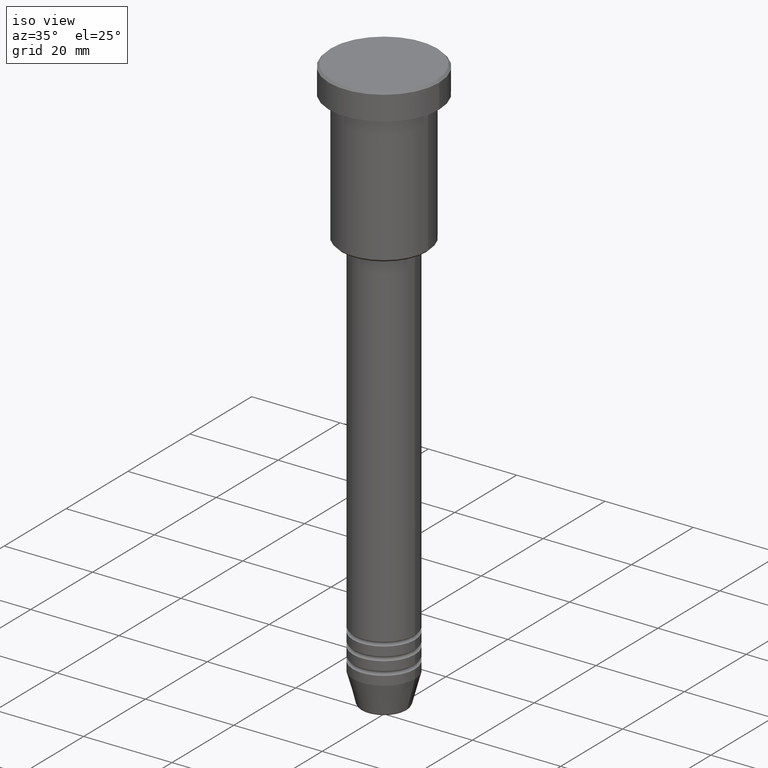
[diagram: clean part render]
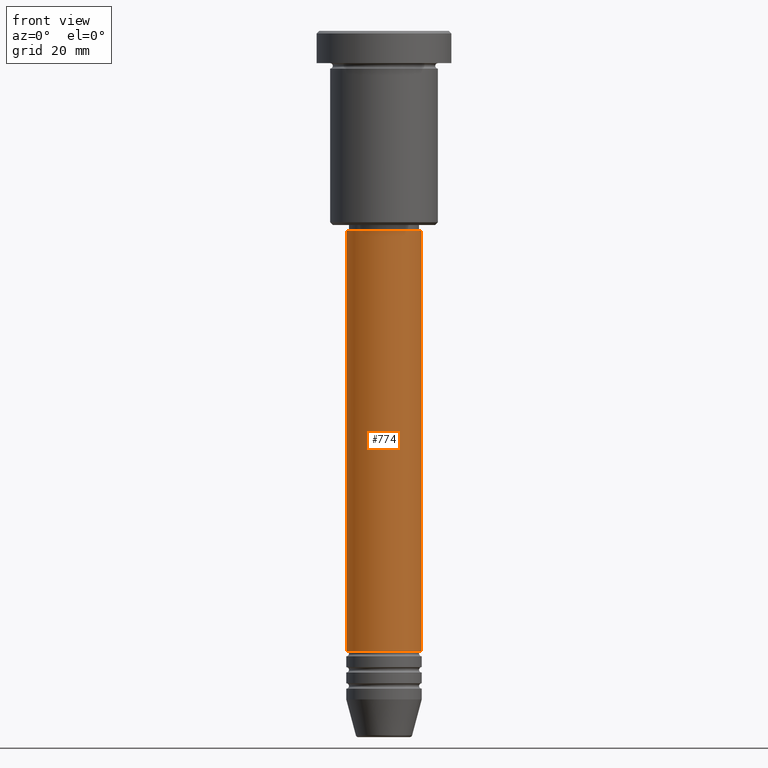
[diagram: tour spotlight — one face highlighted and labeled with its STEP entity id]
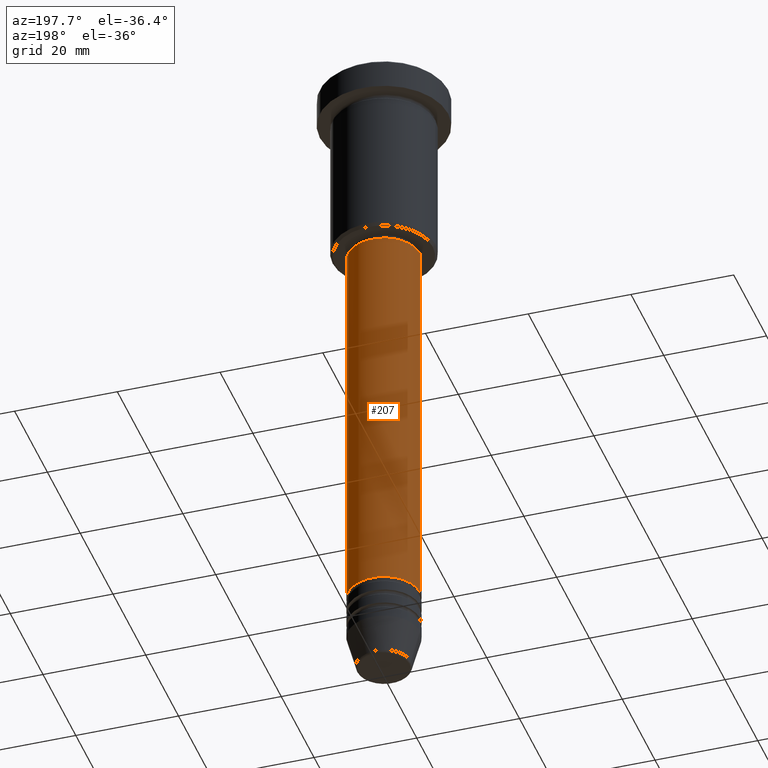
[diagram: tour spotlight — one face highlighted and labeled with its STEP entity id]
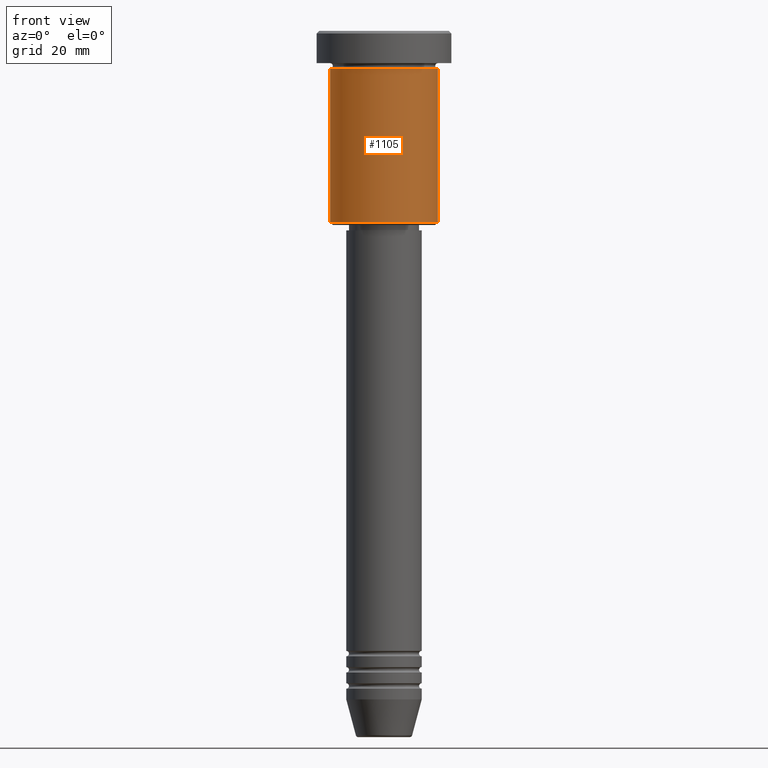
[diagram: tour spotlight — one face highlighted and labeled with its STEP entity id]
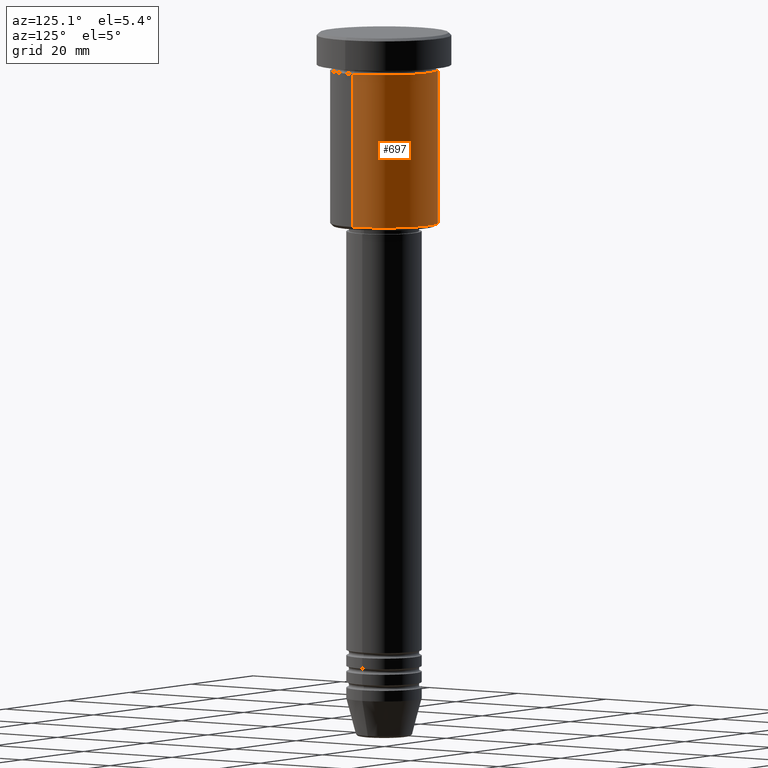
[diagram: tour spotlight — one face highlighted and labeled with its STEP entity id]
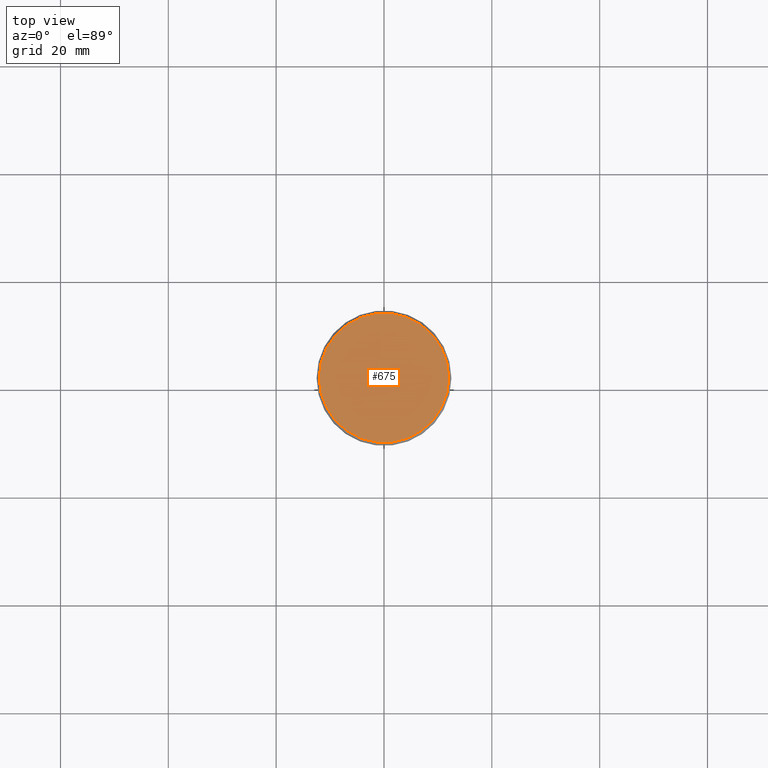
[diagram: tour spotlight — one face highlighted and labeled with its STEP entity id]
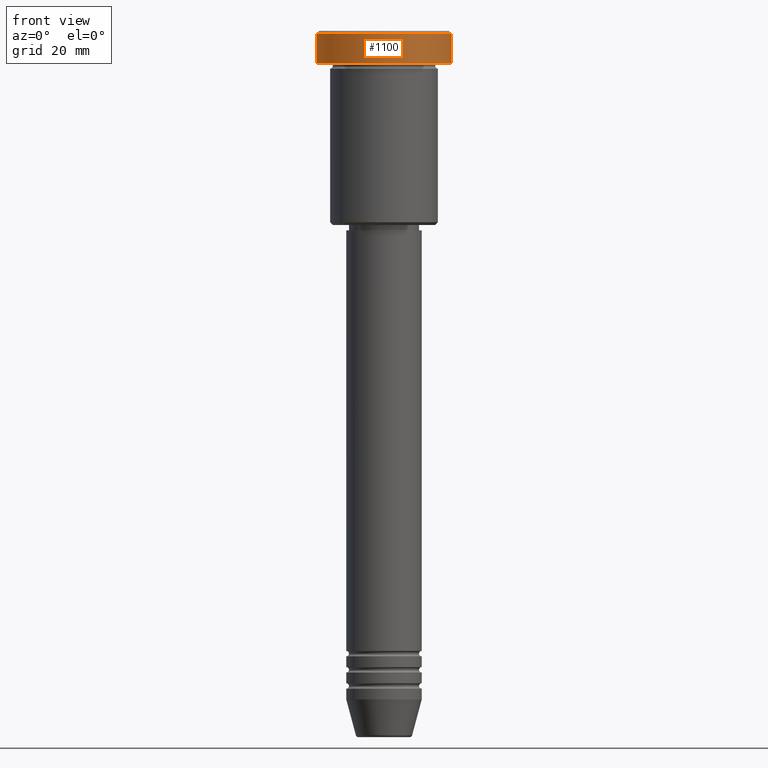
[diagram: tour spotlight — one face highlighted and labeled with its STEP entity id]
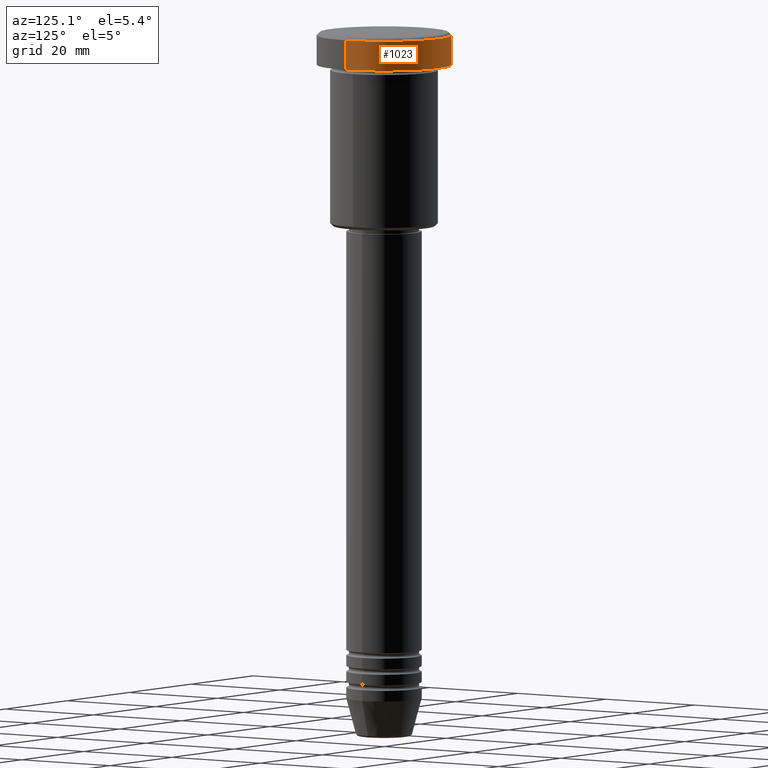
[diagram: tour spotlight — one face highlighted and labeled with its STEP entity id]
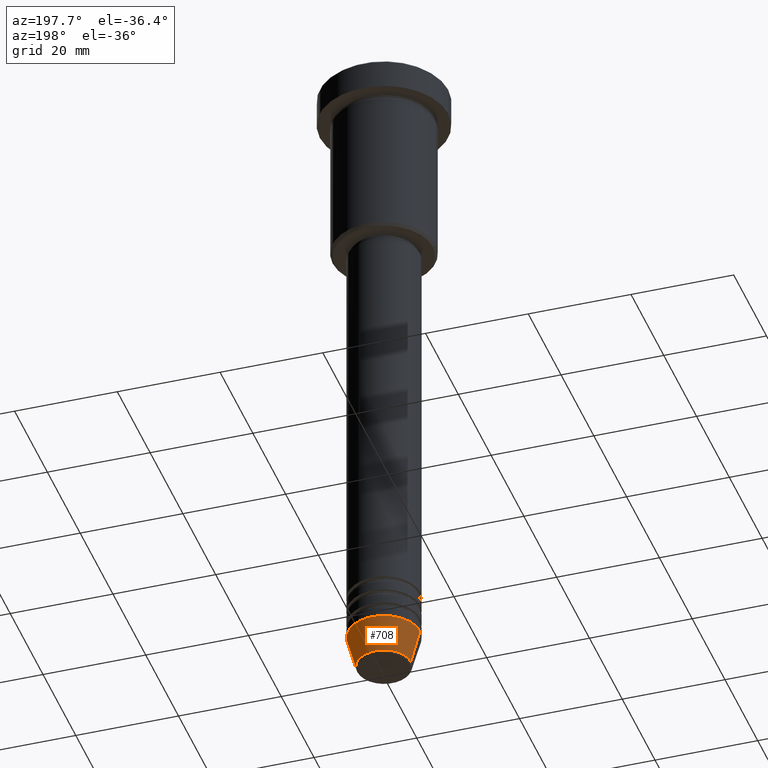
[diagram: tour spotlight — one face highlighted and labeled with its STEP entity id]
A machine part: a face-by-face anatomy tour. The part has 43 B-rep faces; the first image is the clean iso view, then the 8 largest visible faces are spotlighted one at a time (largest first), each with its STEP entity span.

Face 1 — front view, entity #774. In plain terms, the highlighted cylindrical surface (partial cylindrical patch) has radius 7 mm, axis along (-0, -0, 1).
Definition (entity closure, byte-faithful):
#15 = EDGE_CURVE ( 'NONE', #133, #630, #735, .T. ) ;
#23 = DIRECTION ( 'NONE',  ( 1.000000000000000000, 0.000000000000000000, 0.000000000000000000 ) ) ;
#48 = CARTESIAN_POINT ( 'NONE',  ( 0.000000000000000000, 0.000000000000000000, -114.9999999999999574 ) ) ;
#54 = ORIENTED_EDGE ( 'NONE', *, *, #15, .T. ) ;
#83 = ORIENTED_EDGE ( 'NONE', *, *, #433, .F. ) ;
#124 = ORIENTED_EDGE ( 'NONE', *, *, #479, .F. ) ;
#133 = VERTEX_POINT ( 'NONE', #251 ) ;
#251 = CARTESIAN_POINT ( 'NONE',  ( 7.000000000000000000, 0.000000000000000000, -114.9999999999999574 ) ) ;
#270 = CARTESIAN_POINT ( 'NONE',  ( -7.000000000000000000, 8.572527594031473190E-16, -37.00000000000000000 ) ) ;
#298 = FACE_OUTER_BOUND ( 'NONE', #412, .T. ) ;
#310 = CYLINDRICAL_SURFACE ( 'NONE', #766, 7.000000000000000000 ) ;
#321 = CIRCLE ( 'NONE', #535, 7.000000000000000000 ) ;
#343 = CARTESIAN_POINT ( 'NONE',  ( -7.000000000000000000, 8.572527594031473190E-16, 0.000000000000000000 ) ) ;
#360 = EDGE_CURVE ( 'NONE', #1130, #133, #321, .T. ) ;
#412 = EDGE_LOOP ( 'NONE', ( #124, #846, #54, #83 ) ) ;
#433 = EDGE_CURVE ( 'NONE', #1137, #630, #1129, .T. ) ;
#437 = DIRECTION ( 'NONE',  ( -0.000000000000000000, -0.000000000000000000, 1.000000000000000000 ) ) ;
#479 = EDGE_CURVE ( 'NONE', #1130, #1137, #887, .T. ) ;
#493 = DIRECTION ( 'NONE',  ( -0.000000000000000000, -0.000000000000000000, 1.000000000000000000 ) ) ;
#495 = DIRECTION ( 'NONE',  ( -0.000000000000000000, -0.000000000000000000, 1.000000000000000000 ) ) ;
#535 = AXIS2_PLACEMENT_3D ( 'NONE', #48, #495, #23 ) ;
#583 = DIRECTION ( 'NONE',  ( 1.000000000000000000, 0.000000000000000000, 0.000000000000000000 ) ) ;
#614 = CARTESIAN_POINT ( 'NONE',  ( 7.000000000000000000, 0.000000000000000000, 0.000000000000000000 ) ) ;
#625 = DIRECTION ( 'NONE',  ( -0.000000000000000000, -0.000000000000000000, 1.000000000000000000 ) ) ;
#630 = VERTEX_POINT ( 'NONE', #917 ) ;
#715 = VECTOR ( 'NONE', #625, 1000.000000000000000 ) ;
#735 = LINE ( 'NONE', #614, #715 ) ;
#764 = AXIS2_PLACEMENT_3D ( 'NONE', #779, #1128, #815 ) ;
#766 = AXIS2_PLACEMENT_3D ( 'NONE', #1040, #493, #583 ) ;
#774 = ADVANCED_FACE ( 'NONE', ( #298 ), #310, .T. ) ;
#779 = CARTESIAN_POINT ( 'NONE',  ( 0.000000000000000000, 0.000000000000000000, -37.00000000000000000 ) ) ;
#815 = DIRECTION ( 'NONE',  ( 1.000000000000000000, 0.000000000000000000, 0.000000000000000000 ) ) ;
#846 = ORIENTED_EDGE ( 'NONE', *, *, #360, .T. ) ;
#849 = CARTESIAN_POINT ( 'NONE',  ( -7.000000000000000000, 8.572527594031473190E-16, -114.9999999999999574 ) ) ;
#887 = LINE ( 'NONE', #343, #1151 ) ;
#917 = CARTESIAN_POINT ( 'NONE',  ( 7.000000000000000000, 0.000000000000000000, -37.00000000000000000 ) ) ;
#1040 = CARTESIAN_POINT ( 'NONE',  ( 0.000000000000000000, 0.000000000000000000, 0.000000000000000000 ) ) ;
#1128 = DIRECTION ( 'NONE',  ( -0.000000000000000000, -0.000000000000000000, 1.000000000000000000 ) ) ;
#1129 = CIRCLE ( 'NONE', #764, 7.000000000000000000 ) ;
#1130 = VERTEX_POINT ( 'NONE', #849 ) ;
#1137 = VERTEX_POINT ( 'NONE', #270 ) ;
#1151 = VECTOR ( 'NONE', #437, 1000.000000000000000 ) ;

Face 2 — auxiliary view, entity #207. In plain terms, the highlighted cylindrical surface (partial cylindrical patch) has radius 7 mm, axis along (-0, -0, 1).
Definition (entity closure, byte-faithful):
#15 = EDGE_CURVE ( 'NONE', #133, #630, #735, .T. ) ;
#34 = EDGE_LOOP ( 'NONE', ( #564, #602, #739, #401 ) ) ;
#76 = EDGE_CURVE ( 'NONE', #133, #1130, #829, .T. ) ;
#133 = VERTEX_POINT ( 'NONE', #251 ) ;
#153 = DIRECTION ( 'NONE',  ( 1.000000000000000000, 0.000000000000000000, 0.000000000000000000 ) ) ;
#170 = DIRECTION ( 'NONE',  ( -0.000000000000000000, -0.000000000000000000, 1.000000000000000000 ) ) ;
#207 = ADVANCED_FACE ( 'NONE', ( #1099 ), #473, .T. ) ;
#248 = DIRECTION ( 'NONE',  ( 1.000000000000000000, 0.000000000000000000, 0.000000000000000000 ) ) ;
#251 = CARTESIAN_POINT ( 'NONE',  ( 7.000000000000000000, 0.000000000000000000, -114.9999999999999574 ) ) ;
#270 = CARTESIAN_POINT ( 'NONE',  ( -7.000000000000000000, 8.572527594031473190E-16, -37.00000000000000000 ) ) ;
#333 = AXIS2_PLACEMENT_3D ( 'NONE', #1075, #170, #153 ) ;
#343 = CARTESIAN_POINT ( 'NONE',  ( -7.000000000000000000, 8.572527594031473190E-16, 0.000000000000000000 ) ) ;
#401 = ORIENTED_EDGE ( 'NONE', *, *, #15, .F. ) ;
#437 = DIRECTION ( 'NONE',  ( -0.000000000000000000, -0.000000000000000000, 1.000000000000000000 ) ) ;
#473 = CYLINDRICAL_SURFACE ( 'NONE', #970, 7.000000000000000000 ) ;
#479 = EDGE_CURVE ( 'NONE', #1130, #1137, #887, .T. ) ;
#564 = ORIENTED_EDGE ( 'NONE', *, *, #76, .T. ) ;
#602 = ORIENTED_EDGE ( 'NONE', *, *, #479, .T. ) ;
#612 = DIRECTION ( 'NONE',  ( -0.000000000000000000, -0.000000000000000000, 1.000000000000000000 ) ) ;
#614 = CARTESIAN_POINT ( 'NONE',  ( 7.000000000000000000, 0.000000000000000000, 0.000000000000000000 ) ) ;
#625 = DIRECTION ( 'NONE',  ( -0.000000000000000000, -0.000000000000000000, 1.000000000000000000 ) ) ;
#630 = VERTEX_POINT ( 'NONE', #917 ) ;
#680 = CIRCLE ( 'NONE', #1098, 7.000000000000000000 ) ;
#712 = CARTESIAN_POINT ( 'NONE',  ( 0.000000000000000000, 0.000000000000000000, -37.00000000000000000 ) ) ;
#715 = VECTOR ( 'NONE', #625, 1000.000000000000000 ) ;
#735 = LINE ( 'NONE', #614, #715 ) ;
#739 = ORIENTED_EDGE ( 'NONE', *, *, #983, .F. ) ;
#829 = CIRCLE ( 'NONE', #333, 7.000000000000000000 ) ;
#849 = CARTESIAN_POINT ( 'NONE',  ( -7.000000000000000000, 8.572527594031473190E-16, -114.9999999999999574 ) ) ;
#887 = LINE ( 'NONE', #343, #1151 ) ;
#917 = CARTESIAN_POINT ( 'NONE',  ( 7.000000000000000000, 0.000000000000000000, -37.00000000000000000 ) ) ;
#970 = AXIS2_PLACEMENT_3D ( 'NONE', #1009, #1176, #1182 ) ;
#983 = EDGE_CURVE ( 'NONE', #630, #1137, #680, .T. ) ;
#1009 = CARTESIAN_POINT ( 'NONE',  ( 0.000000000000000000, 0.000000000000000000, 0.000000000000000000 ) ) ;
#1075 = CARTESIAN_POINT ( 'NONE',  ( 0.000000000000000000, 0.000000000000000000, -114.9999999999999574 ) ) ;
#1098 = AXIS2_PLACEMENT_3D ( 'NONE', #712, #612, #248 ) ;
#1099 = FACE_OUTER_BOUND ( 'NONE', #34, .T. ) ;
#1130 = VERTEX_POINT ( 'NONE', #849 ) ;
#1137 = VERTEX_POINT ( 'NONE', #270 ) ;
#1151 = VECTOR ( 'NONE', #437, 1000.000000000000000 ) ;
#1176 = DIRECTION ( 'NONE',  ( -0.000000000000000000, -0.000000000000000000, 1.000000000000000000 ) ) ;
#1182 = DIRECTION ( 'NONE',  ( 1.000000000000000000, 0.000000000000000000, 0.000000000000000000 ) ) ;

Face 3 — front view, entity #1105. In plain terms, the highlighted cylindrical surface (partial cylindrical patch) has radius 10 mm, axis along (-0, -0, 1).
Definition (entity closure, byte-faithful):
#59 = CARTESIAN_POINT ( 'NONE',  ( -10.00000000000000000, 1.224646799147353256E-15, -35.49999999999997868 ) ) ;
#60 = CARTESIAN_POINT ( 'NONE',  ( -10.00000000000000000, 1.224646799147353256E-15, 0.000000000000000000 ) ) ;
#61 = VECTOR ( 'NONE', #801, 1000.000000000000000 ) ;
#65 = ORIENTED_EDGE ( 'NONE', *, *, #640, .T. ) ;
#71 = DIRECTION ( 'NONE',  ( -1.000000000000000000, 0.000000000000000000, 0.000000000000000000 ) ) ;
#87 = CARTESIAN_POINT ( 'NONE',  ( 10.00000000000000000, 0.000000000000000000, 0.000000000000000000 ) ) ;
#105 = CYLINDRICAL_SURFACE ( 'NONE', #1153, 10.00000000000000000 ) ;
#131 = CARTESIAN_POINT ( 'NONE',  ( 10.00000000000000000, 0.000000000000000000, -6.999999999999996447 ) ) ;
#231 = VECTOR ( 'NONE', #930, 1000.000000000000000 ) ;
#241 = ORIENTED_EDGE ( 'NONE', *, *, #1012, .T. ) ;
#256 = LINE ( 'NONE', #60, #61 ) ;
#274 = DIRECTION ( 'NONE',  ( -0.000000000000000000, -0.000000000000000000, 1.000000000000000000 ) ) ;
#289 = LINE ( 'NONE', #87, #231 ) ;
#313 = VERTEX_POINT ( 'NONE', #131 ) ;
#353 = CARTESIAN_POINT ( 'NONE',  ( 0.000000000000000000, 0.000000000000000000, 0.000000000000000000 ) ) ;
#356 = CARTESIAN_POINT ( 'NONE',  ( 0.000000000000000000, 0.000000000000000000, -6.999999999999996447 ) ) ;
#444 = DIRECTION ( 'NONE',  ( 1.000000000000000000, 0.000000000000000000, 0.000000000000000000 ) ) ;
#560 = EDGE_CURVE ( 'NONE', #947, #864, #256, .T. ) ;
#576 = CIRCLE ( 'NONE', #1058, 10.00000000000000000 ) ;
#577 = CARTESIAN_POINT ( 'NONE',  ( 10.00000000000000000, 0.000000000000000000, -35.49999999999997868 ) ) ;
#597 = CARTESIAN_POINT ( 'NONE',  ( 0.000000000000000000, 0.000000000000000000, -35.49999999999997868 ) ) ;
#640 = EDGE_CURVE ( 'NONE', #823, #313, #289, .T. ) ;
#651 = DIRECTION ( 'NONE',  ( 1.000000000000000000, 0.000000000000000000, 0.000000000000000000 ) ) ;
#670 = ORIENTED_EDGE ( 'NONE', *, *, #721, .F. ) ;
#721 = EDGE_CURVE ( 'NONE', #864, #313, #1131, .T. ) ;
#723 = DIRECTION ( 'NONE',  ( -0.000000000000000000, -0.000000000000000000, 1.000000000000000000 ) ) ;
#744 = ORIENTED_EDGE ( 'NONE', *, *, #560, .F. ) ;
#801 = DIRECTION ( 'NONE',  ( -0.000000000000000000, -0.000000000000000000, 1.000000000000000000 ) ) ;
#823 = VERTEX_POINT ( 'NONE', #577 ) ;
#830 = FACE_OUTER_BOUND ( 'NONE', #1132, .T. ) ;
#836 = DIRECTION ( 'NONE',  ( -0.000000000000000000, -0.000000000000000000, 1.000000000000000000 ) ) ;
#864 = VERTEX_POINT ( 'NONE', #1139 ) ;
#911 = AXIS2_PLACEMENT_3D ( 'NONE', #356, #836, #651 ) ;
#930 = DIRECTION ( 'NONE',  ( -0.000000000000000000, -0.000000000000000000, 1.000000000000000000 ) ) ;
#947 = VERTEX_POINT ( 'NONE', #59 ) ;
#1012 = EDGE_CURVE ( 'NONE', #947, #823, #576, .T. ) ;
#1058 = AXIS2_PLACEMENT_3D ( 'NONE', #597, #723, #71 ) ;
#1105 = ADVANCED_FACE ( 'NONE', ( #830 ), #105, .T. ) ;
#1131 = CIRCLE ( 'NONE', #911, 10.00000000000000000 ) ;
#1132 = EDGE_LOOP ( 'NONE', ( #744, #241, #65, #670 ) ) ;
#1139 = CARTESIAN_POINT ( 'NONE',  ( -10.00000000000000000, 1.224646799147353256E-15, -6.999999999999996447 ) ) ;
#1153 = AXIS2_PLACEMENT_3D ( 'NONE', #353, #274, #444 ) ;

Face 4 — auxiliary view, entity #697. In plain terms, the highlighted cylindrical surface (partial cylindrical patch) has radius 10 mm, axis along (-0, -0, 1).
Definition (entity closure, byte-faithful):
#59 = CARTESIAN_POINT ( 'NONE',  ( -10.00000000000000000, 1.224646799147353256E-15, -35.49999999999997868 ) ) ;
#60 = CARTESIAN_POINT ( 'NONE',  ( -10.00000000000000000, 1.224646799147353256E-15, 0.000000000000000000 ) ) ;
#61 = VECTOR ( 'NONE', #801, 1000.000000000000000 ) ;
#64 = AXIS2_PLACEMENT_3D ( 'NONE', #915, #920, #91 ) ;
#87 = CARTESIAN_POINT ( 'NONE',  ( 10.00000000000000000, 0.000000000000000000, 0.000000000000000000 ) ) ;
#91 = DIRECTION ( 'NONE',  ( 1.000000000000000000, 0.000000000000000000, 0.000000000000000000 ) ) ;
#110 = DIRECTION ( 'NONE',  ( -1.000000000000000000, 0.000000000000000000, 0.000000000000000000 ) ) ;
#131 = CARTESIAN_POINT ( 'NONE',  ( 10.00000000000000000, 0.000000000000000000, -6.999999999999996447 ) ) ;
#132 = ORIENTED_EDGE ( 'NONE', *, *, #640, .F. ) ;
#166 = ORIENTED_EDGE ( 'NONE', *, *, #193, .T. ) ;
#193 = EDGE_CURVE ( 'NONE', #823, #947, #1022, .T. ) ;
#231 = VECTOR ( 'NONE', #930, 1000.000000000000000 ) ;
#256 = LINE ( 'NONE', #60, #61 ) ;
#269 = CIRCLE ( 'NONE', #64, 10.00000000000000000 ) ;
#271 = CYLINDRICAL_SURFACE ( 'NONE', #460, 10.00000000000000000 ) ;
#273 = AXIS2_PLACEMENT_3D ( 'NONE', #931, #750, #110 ) ;
#289 = LINE ( 'NONE', #87, #231 ) ;
#313 = VERTEX_POINT ( 'NONE', #131 ) ;
#460 = AXIS2_PLACEMENT_3D ( 'NONE', #921, #912, #753 ) ;
#517 = ORIENTED_EDGE ( 'NONE', *, *, #1062, .F. ) ;
#560 = EDGE_CURVE ( 'NONE', #947, #864, #256, .T. ) ;
#577 = CARTESIAN_POINT ( 'NONE',  ( 10.00000000000000000, 0.000000000000000000, -35.49999999999997868 ) ) ;
#588 = EDGE_LOOP ( 'NONE', ( #166, #689, #517, #132 ) ) ;
#640 = EDGE_CURVE ( 'NONE', #823, #313, #289, .T. ) ;
#689 = ORIENTED_EDGE ( 'NONE', *, *, #560, .T. ) ;
#697 = ADVANCED_FACE ( 'NONE', ( #1181 ), #271, .T. ) ;
#750 = DIRECTION ( 'NONE',  ( -0.000000000000000000, -0.000000000000000000, 1.000000000000000000 ) ) ;
#753 = DIRECTION ( 'NONE',  ( 1.000000000000000000, 0.000000000000000000, 0.000000000000000000 ) ) ;
#801 = DIRECTION ( 'NONE',  ( -0.000000000000000000, -0.000000000000000000, 1.000000000000000000 ) ) ;
#823 = VERTEX_POINT ( 'NONE', #577 ) ;
#864 = VERTEX_POINT ( 'NONE', #1139 ) ;
#912 = DIRECTION ( 'NONE',  ( -0.000000000000000000, -0.000000000000000000, 1.000000000000000000 ) ) ;
#915 = CARTESIAN_POINT ( 'NONE',  ( 0.000000000000000000, 0.000000000000000000, -6.999999999999996447 ) ) ;
#920 = DIRECTION ( 'NONE',  ( -0.000000000000000000, -0.000000000000000000, 1.000000000000000000 ) ) ;
#921 = CARTESIAN_POINT ( 'NONE',  ( 0.000000000000000000, 0.000000000000000000, 0.000000000000000000 ) ) ;
#930 = DIRECTION ( 'NONE',  ( -0.000000000000000000, -0.000000000000000000, 1.000000000000000000 ) ) ;
#931 = CARTESIAN_POINT ( 'NONE',  ( 0.000000000000000000, 0.000000000000000000, -35.49999999999997868 ) ) ;
#947 = VERTEX_POINT ( 'NONE', #59 ) ;
#1022 = CIRCLE ( 'NONE', #273, 10.00000000000000000 ) ;
#1062 = EDGE_CURVE ( 'NONE', #313, #864, #269, .T. ) ;
#1139 = CARTESIAN_POINT ( 'NONE',  ( -10.00000000000000000, 1.224646799147353256E-15, -6.999999999999996447 ) ) ;
#1181 = FACE_OUTER_BOUND ( 'NONE', #588, .T. ) ;

Face 5 — top view, entity #675. In plain terms, the highlighted planar face has unit normal (0, -0, 1).
Definition (entity closure, byte-faithful):
#97 = CARTESIAN_POINT ( 'NONE',  ( 0.000000000000000000, 0.000000000000000000, 0.000000000000000000 ) ) ;
#162 = EDGE_CURVE ( 'NONE', #706, #355, #755, .T. ) ;
#172 = AXIS2_PLACEMENT_3D ( 'NONE', #426, #997, #718 ) ;
#194 = DIRECTION ( 'NONE',  ( 0.000000000000000000, -0.000000000000000000, 1.000000000000000000 ) ) ;
#200 = CARTESIAN_POINT ( 'NONE',  ( 0.000000000000000000, 0.000000000000000000, 0.000000000000000000 ) ) ;
#265 = DIRECTION ( 'NONE',  ( 1.000000000000000000, 0.000000000000000000, 0.000000000000000000 ) ) ;
#355 = VERTEX_POINT ( 'NONE', #585 ) ;
#400 = EDGE_LOOP ( 'NONE', ( #968, #877 ) ) ;
#426 = CARTESIAN_POINT ( 'NONE',  ( 0.000000000000000000, 0.000000000000000000, 0.000000000000000000 ) ) ;
#445 = DIRECTION ( 'NONE',  ( 1.000000000000000000, 0.000000000000000000, 0.000000000000000000 ) ) ;
#463 = PLANE ( 'NONE',  #857 ) ;
#504 = EDGE_CURVE ( 'NONE', #355, #706, #1016, .T. ) ;
#551 = FACE_OUTER_BOUND ( 'NONE', #400, .T. ) ;
#562 = AXIS2_PLACEMENT_3D ( 'NONE', #200, #1104, #265 ) ;
#585 = CARTESIAN_POINT ( 'NONE',  ( -12.00000000000001066, 0.000000000000000000, 0.000000000000000000 ) ) ;
#675 = ADVANCED_FACE ( 'NONE', ( #551 ), #463, .T. ) ;
#706 = VERTEX_POINT ( 'NONE', #747 ) ;
#718 = DIRECTION ( 'NONE',  ( 1.000000000000000000, 0.000000000000000000, 0.000000000000000000 ) ) ;
#747 = CARTESIAN_POINT ( 'NONE',  ( 12.00000000000001066, 1.500192328955508326E-15, 0.000000000000000000 ) ) ;
#755 = CIRCLE ( 'NONE', #562, 12.00000000000001066 ) ;
#857 = AXIS2_PLACEMENT_3D ( 'NONE', #97, #194, #445 ) ;
#877 = ORIENTED_EDGE ( 'NONE', *, *, #162, .T. ) ;
#968 = ORIENTED_EDGE ( 'NONE', *, *, #504, .T. ) ;
#997 = DIRECTION ( 'NONE',  ( -0.000000000000000000, -0.000000000000000000, 1.000000000000000000 ) ) ;
#1016 = CIRCLE ( 'NONE', #172, 12.00000000000001066 ) ;
#1104 = DIRECTION ( 'NONE',  ( -0.000000000000000000, -0.000000000000000000, 1.000000000000000000 ) ) ;

Face 6 — front view, entity #1100. In plain terms, the highlighted cylindrical surface (partial cylindrical patch) has radius 12.5 mm, axis along (-0, -0, 1).
Definition (entity closure, byte-faithful):
#3 = CIRCLE ( 'NONE', #678, 12.50000000000000000 ) ;
#53 = DIRECTION ( 'NONE',  ( 1.000000000000000000, 0.000000000000000000, 0.000000000000000000 ) ) ;
#66 = CARTESIAN_POINT ( 'NONE',  ( 0.000000000000000000, 0.000000000000000000, -5.999999999999996447 ) ) ;
#104 = ORIENTED_EDGE ( 'NONE', *, *, #700, .F. ) ;
#120 = AXIS2_PLACEMENT_3D ( 'NONE', #754, #763, #1024 ) ;
#126 = VERTEX_POINT ( 'NONE', #240 ) ;
#158 = EDGE_CURVE ( 'NONE', #610, #605, #627, .T. ) ;
#176 = CARTESIAN_POINT ( 'NONE',  ( 12.50000000000000000, 0.000000000000000000, -0.4999999999999917843 ) ) ;
#230 = CARTESIAN_POINT ( 'NONE',  ( 12.50000000000000000, 0.000000000000000000, 0.000000000000000000 ) ) ;
#240 = CARTESIAN_POINT ( 'NONE',  ( -12.50000000000000000, 1.530808498934191521E-15, -5.999999999999996447 ) ) ;
#275 = LINE ( 'NONE', #1175, #618 ) ;
#344 = VECTOR ( 'NONE', #775, 1000.000000000000000 ) ;
#379 = EDGE_CURVE ( 'NONE', #419, #610, #488, .T. ) ;
#419 = VERTEX_POINT ( 'NONE', #1027 ) ;
#440 = CARTESIAN_POINT ( 'NONE',  ( -12.50000000000000000, 1.530808498934191521E-15, -0.4999999999999917843 ) ) ;
#448 = DIRECTION ( 'NONE',  ( -0.000000000000000000, -0.000000000000000000, 1.000000000000000000 ) ) ;
#488 = LINE ( 'NONE', #230, #344 ) ;
#541 = EDGE_LOOP ( 'NONE', ( #104, #586, #693, #1095 ) ) ;
#559 = DIRECTION ( 'NONE',  ( -0.000000000000000000, -0.000000000000000000, 1.000000000000000000 ) ) ;
#586 = ORIENTED_EDGE ( 'NONE', *, *, #937, .T. ) ;
#605 = VERTEX_POINT ( 'NONE', #440 ) ;
#610 = VERTEX_POINT ( 'NONE', #176 ) ;
#618 = VECTOR ( 'NONE', #559, 1000.000000000000000 ) ;
#627 = CIRCLE ( 'NONE', #120, 12.50000000000000000 ) ;
#628 = DIRECTION ( 'NONE',  ( 1.000000000000000000, 0.000000000000000000, 0.000000000000000000 ) ) ;
#678 = AXIS2_PLACEMENT_3D ( 'NONE', #66, #705, #53 ) ;
#693 = ORIENTED_EDGE ( 'NONE', *, *, #379, .T. ) ;
#700 = EDGE_CURVE ( 'NONE', #126, #605, #275, .T. ) ;
#705 = DIRECTION ( 'NONE',  ( -0.000000000000000000, -0.000000000000000000, 1.000000000000000000 ) ) ;
#727 = AXIS2_PLACEMENT_3D ( 'NONE', #1006, #448, #628 ) ;
#752 = CYLINDRICAL_SURFACE ( 'NONE', #727, 12.50000000000000000 ) ;
#754 = CARTESIAN_POINT ( 'NONE',  ( 0.000000000000000000, 0.000000000000000000, -0.4999999999999917843 ) ) ;
#763 = DIRECTION ( 'NONE',  ( 0.000000000000000000, 0.000000000000000000, -1.000000000000000000 ) ) ;
#775 = DIRECTION ( 'NONE',  ( -0.000000000000000000, -0.000000000000000000, 1.000000000000000000 ) ) ;
#937 = EDGE_CURVE ( 'NONE', #126, #419, #3, .T. ) ;
#1006 = CARTESIAN_POINT ( 'NONE',  ( 0.000000000000000000, 0.000000000000000000, 0.000000000000000000 ) ) ;
#1015 = FACE_OUTER_BOUND ( 'NONE', #541, .T. ) ;
#1024 = DIRECTION ( 'NONE',  ( 1.000000000000000000, 0.000000000000000000, 0.000000000000000000 ) ) ;
#1027 = CARTESIAN_POINT ( 'NONE',  ( 12.50000000000000000, 0.000000000000000000, -5.999999999999996447 ) ) ;
#1095 = ORIENTED_EDGE ( 'NONE', *, *, #158, .T. ) ;
#1100 = ADVANCED_FACE ( 'NONE', ( #1015 ), #752, .T. ) ;
#1175 = CARTESIAN_POINT ( 'NONE',  ( -12.50000000000000000, 1.530808498934191521E-15, 0.000000000000000000 ) ) ;

Face 7 — auxiliary view, entity #1023. In plain terms, the highlighted cylindrical surface (partial cylindrical patch) has radius 12.5 mm, axis along (-0, -0, 1).
Definition (entity closure, byte-faithful):
#82 = EDGE_CURVE ( 'NONE', #419, #126, #373, .T. ) ;
#126 = VERTEX_POINT ( 'NONE', #240 ) ;
#168 = CARTESIAN_POINT ( 'NONE',  ( 0.000000000000000000, 0.000000000000000000, 0.000000000000000000 ) ) ;
#176 = CARTESIAN_POINT ( 'NONE',  ( 12.50000000000000000, 0.000000000000000000, -0.4999999999999917843 ) ) ;
#230 = CARTESIAN_POINT ( 'NONE',  ( 12.50000000000000000, 0.000000000000000000, 0.000000000000000000 ) ) ;
#238 = ORIENTED_EDGE ( 'NONE', *, *, #700, .T. ) ;
#240 = CARTESIAN_POINT ( 'NONE',  ( -12.50000000000000000, 1.530808498934191521E-15, -5.999999999999996447 ) ) ;
#275 = LINE ( 'NONE', #1175, #618 ) ;
#344 = VECTOR ( 'NONE', #775, 1000.000000000000000 ) ;
#373 = CIRCLE ( 'NONE', #527, 12.50000000000000000 ) ;
#379 = EDGE_CURVE ( 'NONE', #419, #610, #488, .T. ) ;
#410 = EDGE_LOOP ( 'NONE', ( #793, #238, #457, #1049 ) ) ;
#419 = VERTEX_POINT ( 'NONE', #1027 ) ;
#438 = DIRECTION ( 'NONE',  ( 1.000000000000000000, 0.000000000000000000, 0.000000000000000000 ) ) ;
#440 = CARTESIAN_POINT ( 'NONE',  ( -12.50000000000000000, 1.530808498934191521E-15, -0.4999999999999917843 ) ) ;
#457 = ORIENTED_EDGE ( 'NONE', *, *, #545, .T. ) ;
#474 = AXIS2_PLACEMENT_3D ( 'NONE', #883, #987, #900 ) ;
#488 = LINE ( 'NONE', #230, #344 ) ;
#527 = AXIS2_PLACEMENT_3D ( 'NONE', #902, #897, #438 ) ;
#539 = DIRECTION ( 'NONE',  ( -0.000000000000000000, -0.000000000000000000, 1.000000000000000000 ) ) ;
#545 = EDGE_CURVE ( 'NONE', #605, #610, #982, .T. ) ;
#559 = DIRECTION ( 'NONE',  ( -0.000000000000000000, -0.000000000000000000, 1.000000000000000000 ) ) ;
#605 = VERTEX_POINT ( 'NONE', #440 ) ;
#610 = VERTEX_POINT ( 'NONE', #176 ) ;
#618 = VECTOR ( 'NONE', #559, 1000.000000000000000 ) ;
#700 = EDGE_CURVE ( 'NONE', #126, #605, #275, .T. ) ;
#775 = DIRECTION ( 'NONE',  ( -0.000000000000000000, -0.000000000000000000, 1.000000000000000000 ) ) ;
#793 = ORIENTED_EDGE ( 'NONE', *, *, #82, .T. ) ;
#814 = FACE_OUTER_BOUND ( 'NONE', #410, .T. ) ;
#883 = CARTESIAN_POINT ( 'NONE',  ( 0.000000000000000000, 0.000000000000000000, -0.4999999999999917843 ) ) ;
#897 = DIRECTION ( 'NONE',  ( -0.000000000000000000, -0.000000000000000000, 1.000000000000000000 ) ) ;
#900 = DIRECTION ( 'NONE',  ( 1.000000000000000000, 0.000000000000000000, 0.000000000000000000 ) ) ;
#902 = CARTESIAN_POINT ( 'NONE',  ( 0.000000000000000000, 0.000000000000000000, -5.999999999999996447 ) ) ;
#982 = CIRCLE ( 'NONE', #474, 12.50000000000000000 ) ;
#987 = DIRECTION ( 'NONE',  ( 0.000000000000000000, 0.000000000000000000, -1.000000000000000000 ) ) ;
#1018 = AXIS2_PLACEMENT_3D ( 'NONE', #168, #539, #1178 ) ;
#1023 = ADVANCED_FACE ( 'NONE', ( #814 ), #1163, .T. ) ;
#1027 = CARTESIAN_POINT ( 'NONE',  ( 12.50000000000000000, 0.000000000000000000, -5.999999999999996447 ) ) ;
#1049 = ORIENTED_EDGE ( 'NONE', *, *, #379, .F. ) ;
#1163 = CYLINDRICAL_SURFACE ( 'NONE', #1018, 12.50000000000000000 ) ;
#1175 = CARTESIAN_POINT ( 'NONE',  ( -12.50000000000000000, 1.530808498934191521E-15, 0.000000000000000000 ) ) ;
#1178 = DIRECTION ( 'NONE',  ( 1.000000000000000000, 0.000000000000000000, 0.000000000000000000 ) ) ;

Face 8 — auxiliary view, entity #708. In plain terms, the highlighted conical surface has half-angle 15 deg.
Definition (entity closure, byte-faithful):
#14 = CARTESIAN_POINT ( 'NONE',  ( 7.000000000000000000, 0.000000000000000000, -124.0000000000000000 ) ) ;
#42 = AXIS2_PLACEMENT_3D ( 'NONE', #1008, #547, #455 ) ;
#51 = VECTOR ( 'NONE', #729, 1000.000000000000000 ) ;
#58 = ORIENTED_EDGE ( 'NONE', *, *, #991, .T. ) ;
#62 = LINE ( 'NONE', #446, #125 ) ;
#72 = EDGE_CURVE ( 'NONE', #1039, #1138, #62, .T. ) ;
#101 = DIRECTION ( 'NONE',  ( 1.000000000000000000, 0.000000000000000000, 0.000000000000000000 ) ) ;
#108 = EDGE_CURVE ( 'NONE', #342, #737, #710, .T. ) ;
#125 = VECTOR ( 'NONE', #513, 1000.000000000000000 ) ;
#157 = DIRECTION ( 'NONE',  ( 1.000000000000000000, 0.000000000000000000, 0.000000000000000000 ) ) ;
#190 = CIRCLE ( 'NONE', #477, 7.000000000000000000 ) ;
#225 = ORIENTED_EDGE ( 'NONE', *, *, #108, .F. ) ;
#342 = VERTEX_POINT ( 'NONE', #967 ) ;
#348 = CARTESIAN_POINT ( 'NONE',  ( -7.000000000000000000, 8.572527594031473190E-16, -124.0000000000000000 ) ) ;
#446 = CARTESIAN_POINT ( 'NONE',  ( -7.000000000000000000, 8.572527594031473190E-16, -124.0000000000000000 ) ) ;
#455 = DIRECTION ( 'NONE',  ( 1.000000000000000000, 0.000000000000000000, 0.000000000000000000 ) ) ;
#477 = AXIS2_PLACEMENT_3D ( 'NONE', #1112, #542, #101 ) ;
#513 = DIRECTION ( 'NONE',  ( -0.2588190451025214056, 3.169619151431772953E-17, 0.9659258262890680902 ) ) ;
#542 = DIRECTION ( 'NONE',  ( -0.000000000000000000, -0.000000000000000000, 1.000000000000000000 ) ) ;
#547 = DIRECTION ( 'NONE',  ( -0.000000000000000000, -0.000000000000000000, 1.000000000000000000 ) ) ;
#615 = CARTESIAN_POINT ( 'NONE',  ( 0.000000000000000000, 0.000000000000000000, -130.6294095225512422 ) ) ;
#629 = EDGE_CURVE ( 'NONE', #737, #1138, #190, .T. ) ;
#642 = AXIS2_PLACEMENT_3D ( 'NONE', #615, #985, #157 ) ;
#708 = ADVANCED_FACE ( 'NONE', ( #1097 ), #1113, .T. ) ;
#710 = LINE ( 'NONE', #1082, #51 ) ;
#729 = DIRECTION ( 'NONE',  ( 0.2588190451025214056, 0.000000000000000000, 0.9659258262890680902 ) ) ;
#737 = VERTEX_POINT ( 'NONE', #14 ) ;
#808 = ORIENTED_EDGE ( 'NONE', *, *, #72, .T. ) ;
#821 = CIRCLE ( 'NONE', #642, 5.223655072137191269 ) ;
#956 = EDGE_LOOP ( 'NONE', ( #58, #808, #994, #225 ) ) ;
#967 = CARTESIAN_POINT ( 'NONE',  ( 5.223655072137191269, 0.000000000000000000, -130.6294095225512422 ) ) ;
#985 = DIRECTION ( 'NONE',  ( -0.000000000000000000, -0.000000000000000000, 1.000000000000000000 ) ) ;
#991 = EDGE_CURVE ( 'NONE', #342, #1039, #821, .T. ) ;
#994 = ORIENTED_EDGE ( 'NONE', *, *, #629, .F. ) ;
#1008 = CARTESIAN_POINT ( 'NONE',  ( 0.000000000000000000, 0.000000000000000000, -124.0000000000000000 ) ) ;
#1039 = VERTEX_POINT ( 'NONE', #1173 ) ;
#1082 = CARTESIAN_POINT ( 'NONE',  ( 7.000000000000000000, 0.000000000000000000, -124.0000000000000000 ) ) ;
#1097 = FACE_OUTER_BOUND ( 'NONE', #956, .T. ) ;
#1112 = CARTESIAN_POINT ( 'NONE',  ( 0.000000000000000000, 0.000000000000000000, -124.0000000000000000 ) ) ;
#1113 = CONICAL_SURFACE ( 'NONE', #42, 7.000000000000000000, 0.2617993877991501295 ) ;
#1138 = VERTEX_POINT ( 'NONE', #348 ) ;
#1173 = CARTESIAN_POINT ( 'NONE',  ( -5.223655072137191269, 7.484830028987061160E-16, -130.6294095225512422 ) ) ;